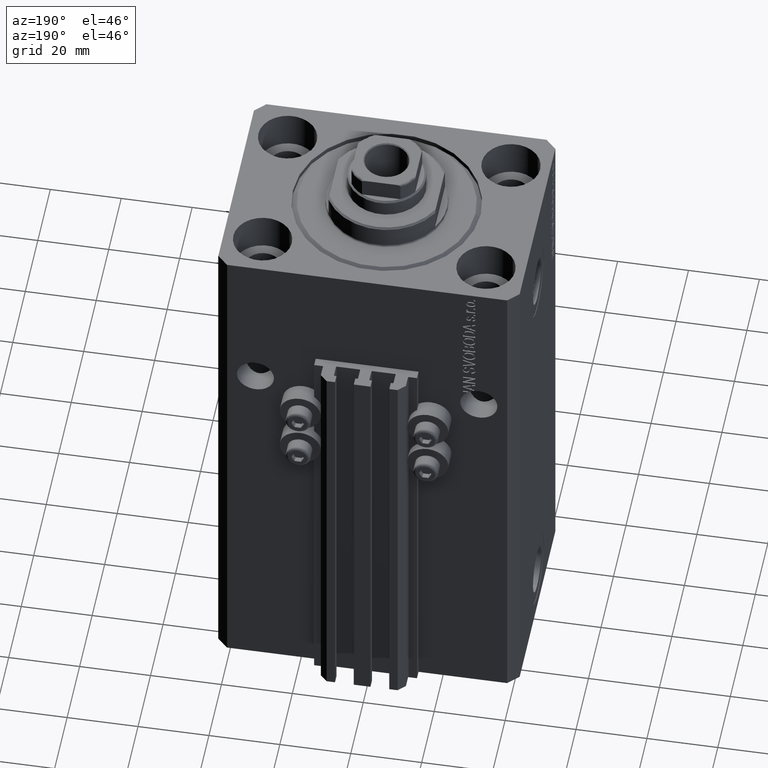
[diagram: clean part render]
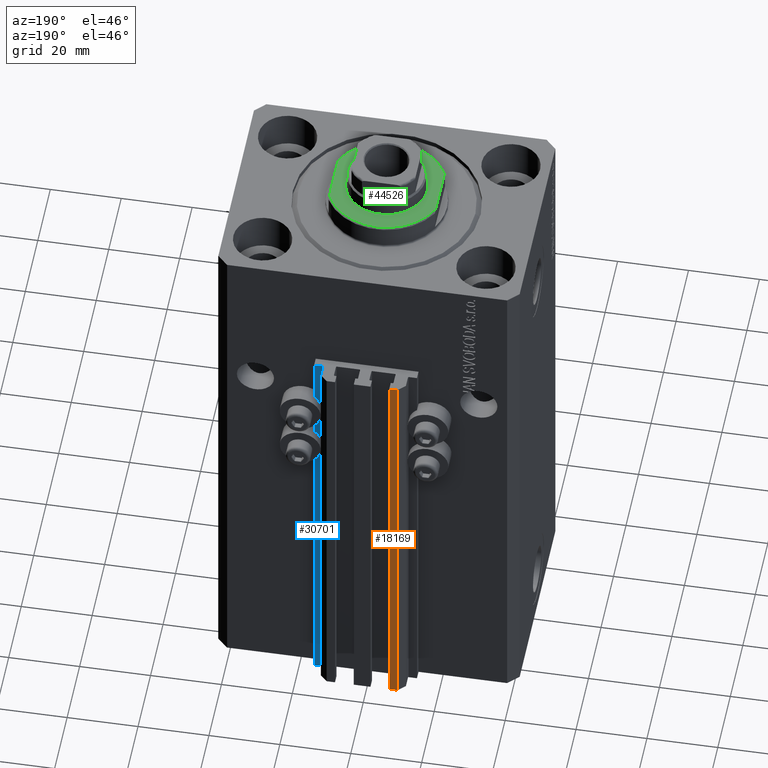
[diagram: same view with three faces highlighted in distinct colors, each labeled with its STEP entity id]
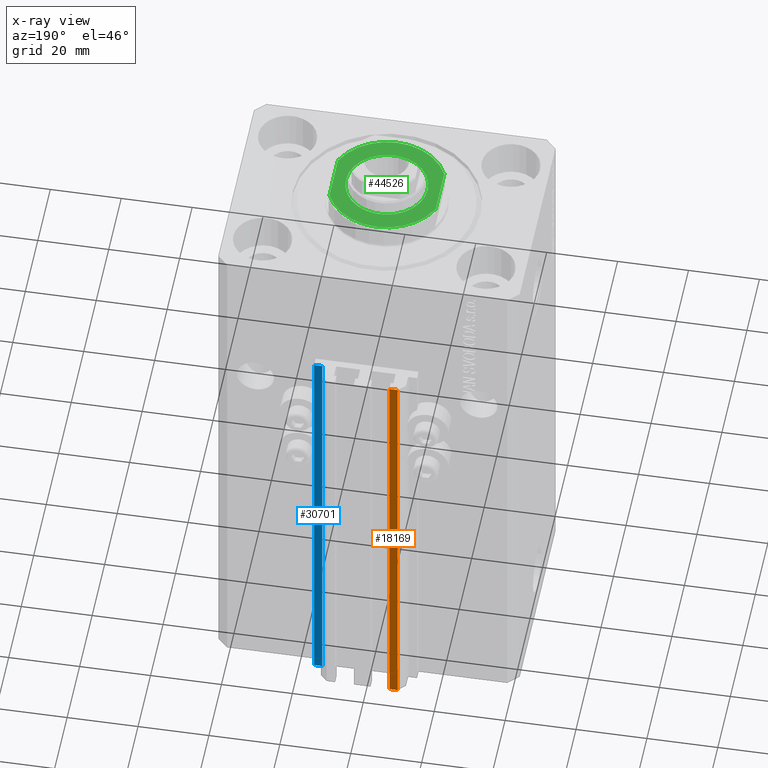
[diagram: x-ray of the same camera — body ghosted, the three highlighted faces saturated]
A machine part, auxiliary view with three faces highlighted in distinct colors.
The next image is the same camera in x-ray (body ghosted, the three faces saturated) — at least one of them is partly hidden behind the body in this view.
Their STEP definitions:

[orange] entity #18169 — the highlighted planar face has unit normal (0, 1, 0).
#33 = VERTEX_POINT ( 'NONE', #33818 ) ;
#151 = LINE ( 'NONE', #10614, #7943 ) ;
#254 = CARTESIAN_POINT ( 'NONE',  ( -7.650000000000002132, 39.49999999999999289, -33.00000000000000000 ) ) ;
#1602 = ORIENTED_EDGE ( 'NONE', *, *, #4387, .F. ) ;
#2387 = LINE ( 'NONE', #6037, #20564 ) ;
#2870 = EDGE_CURVE ( 'NONE', #31210, #33, #18739, .T. ) ;
#4162 = VECTOR ( 'NONE', #4653, 1000.000000000000000 ) ;
#4387 = EDGE_CURVE ( 'NONE', #46234, #31210, #151, .T. ) ;
#4653 = DIRECTION ( 'NONE',  ( 0.000000000000000000, 0.000000000000000000, 1.000000000000000000 ) ) ;
#4891 = LINE ( 'NONE', #8279, #4162 ) ;
#6037 = CARTESIAN_POINT ( 'NONE',  ( -7.650000000000002132, 39.49999999999999289, -153.0000000000000000 ) ) ;
#7943 = VECTOR ( 'NONE', #18391, 1000.000000000000000 ) ;
#8279 = CARTESIAN_POINT ( 'NONE',  ( -10.00000000000000000, 39.49999999999999289, -153.0000000000000000 ) ) ;
#9900 = VERTEX_POINT ( 'NONE', #33509 ) ;
#10359 = EDGE_LOOP ( 'NONE', ( #38446, #1602, #23126, #18941 ) ) ;
#10614 = CARTESIAN_POINT ( 'NONE',  ( -7.650000000000002132, 39.49999999999999289, -153.0000000000000000 ) ) ;
#10620 = DIRECTION ( 'NONE',  ( 0.000000000000000000, 1.000000000000000000, -0.000000000000000000 ) ) ;
#15102 = DIRECTION ( 'NONE',  ( -1.000000000000000000, 0.000000000000000000, 0.000000000000000000 ) ) ;
#17229 = DIRECTION ( 'NONE',  ( -1.000000000000000000, 0.000000000000000000, 0.000000000000000000 ) ) ;
#18159 = DIRECTION ( 'NONE',  ( 0.000000000000000000, 0.000000000000000000, 1.000000000000000000 ) ) ;
#18169 = ADVANCED_FACE ( 'NONE', ( #28400 ), #29094, .T. ) ;
#18391 = DIRECTION ( 'NONE',  ( 0.000000000000000000, 0.000000000000000000, 1.000000000000000000 ) ) ;
#18739 = LINE ( 'NONE', #254, #32776 ) ;
#18941 = ORIENTED_EDGE ( 'NONE', *, *, #28863, .T. ) ;
#20564 = VECTOR ( 'NONE', #17229, 1000.000000000000000 ) ;
#23126 = ORIENTED_EDGE ( 'NONE', *, *, #30126, .T. ) ;
#24344 = CARTESIAN_POINT ( 'NONE',  ( -7.650000000000002132, 39.49999999999999289, -33.00000000000000000 ) ) ;
#28400 = FACE_OUTER_BOUND ( 'NONE', #10359, .T. ) ;
#28863 = EDGE_CURVE ( 'NONE', #9900, #33, #4891, .T. ) ;
#29094 = PLANE ( 'NONE',  #40935 ) ;
#30126 = EDGE_CURVE ( 'NONE', #46234, #9900, #2387, .T. ) ;
#31210 = VERTEX_POINT ( 'NONE', #24344 ) ;
#32277 = CARTESIAN_POINT ( 'NONE',  ( -7.650000000000002132, 39.49999999999999289, -153.0000000000000000 ) ) ;
#32776 = VECTOR ( 'NONE', #15102, 1000.000000000000000 ) ;
#33509 = CARTESIAN_POINT ( 'NONE',  ( -10.00000000000000000, 39.49999999999999289, -153.0000000000000000 ) ) ;
#33818 = CARTESIAN_POINT ( 'NONE',  ( -10.00000000000000000, 39.49999999999999289, -33.00000000000000000 ) ) ;
#38446 = ORIENTED_EDGE ( 'NONE', *, *, #2870, .F. ) ;
#40935 = AXIS2_PLACEMENT_3D ( 'NONE', #47848, #10620, #18159 ) ;
#46234 = VERTEX_POINT ( 'NONE', #32277 ) ;
#47848 = CARTESIAN_POINT ( 'NONE',  ( -7.650000000000002132, 39.49999999999999289, -153.0000000000000000 ) ) ;

[blue] entity #30701 — the highlighted planar face has unit normal (0, 1, 0).
#665 = EDGE_CURVE ( 'NONE', #10218, #2099, #17329, .T. ) ;
#2099 = VERTEX_POINT ( 'NONE', #2158 ) ;
#2158 = CARTESIAN_POINT ( 'NONE',  ( 12.20000000000000107, 34.00000000000001421, -33.00000000000000000 ) ) ;
#2941 = CARTESIAN_POINT ( 'NONE',  ( 14.49999999999999645, 34.00000000000001421, -153.0000000000000000 ) ) ;
#3834 = EDGE_CURVE ( 'NONE', #23429, #10218, #15900, .T. ) ;
#4930 = ORIENTED_EDGE ( 'NONE', *, *, #5930, .T. ) ;
#5930 = EDGE_CURVE ( 'NONE', #20258, #2099, #44985, .T. ) ;
#10218 = VERTEX_POINT ( 'NONE', #11071 ) ;
#11071 = CARTESIAN_POINT ( 'NONE',  ( 14.49999999999999645, 34.00000000000001421, -33.00000000000000000 ) ) ;
#13751 = DIRECTION ( 'NONE',  ( -1.000000000000000000, 0.000000000000000000, 0.000000000000000000 ) ) ;
#15658 = CARTESIAN_POINT ( 'NONE',  ( 14.49999999999999645, 34.00000000000001421, -153.0000000000000000 ) ) ;
#15900 = LINE ( 'NONE', #15658, #38241 ) ;
#17329 = LINE ( 'NONE', #31696, #18678 ) ;
#17582 = CARTESIAN_POINT ( 'NONE',  ( 12.20000000000000107, 34.00000000000001421, -153.0000000000000000 ) ) ;
#17638 = PLANE ( 'NONE',  #25204 ) ;
#18678 = VECTOR ( 'NONE', #20744, 1000.000000000000000 ) ;
#20258 = VERTEX_POINT ( 'NONE', #17582 ) ;
#20699 = ORIENTED_EDGE ( 'NONE', *, *, #665, .F. ) ;
#20744 = DIRECTION ( 'NONE',  ( -1.000000000000000000, 0.000000000000000000, 0.000000000000000000 ) ) ;
#21055 = DIRECTION ( 'NONE',  ( 0.000000000000000000, 1.000000000000000000, -0.000000000000000000 ) ) ;
#23429 = VERTEX_POINT ( 'NONE', #2941 ) ;
#24104 = DIRECTION ( 'NONE',  ( 0.000000000000000000, 0.000000000000000000, 1.000000000000000000 ) ) ;
#24938 = DIRECTION ( 'NONE',  ( 0.000000000000000000, 0.000000000000000000, 1.000000000000000000 ) ) ;
#25170 = FACE_OUTER_BOUND ( 'NONE', #45636, .T. ) ;
#25204 = AXIS2_PLACEMENT_3D ( 'NONE', #40017, #21055, #24938 ) ;
#26482 = CARTESIAN_POINT ( 'NONE',  ( 12.20000000000000107, 34.00000000000001421, -153.0000000000000000 ) ) ;
#29788 = ORIENTED_EDGE ( 'NONE', *, *, #30744, .T. ) ;
#30701 = ADVANCED_FACE ( 'NONE', ( #25170 ), #17638, .T. ) ;
#30744 = EDGE_CURVE ( 'NONE', #23429, #20258, #47318, .T. ) ;
#31696 = CARTESIAN_POINT ( 'NONE',  ( 14.49999999999999645, 34.00000000000001421, -33.00000000000000000 ) ) ;
#34545 = VECTOR ( 'NONE', #13751, 1000.000000000000000 ) ;
#35939 = VECTOR ( 'NONE', #45464, 1000.000000000000000 ) ;
#38241 = VECTOR ( 'NONE', #24104, 1000.000000000000000 ) ;
#38319 = ORIENTED_EDGE ( 'NONE', *, *, #3834, .F. ) ;
#39548 = CARTESIAN_POINT ( 'NONE',  ( 14.49999999999999645, 34.00000000000001421, -153.0000000000000000 ) ) ;
#40017 = CARTESIAN_POINT ( 'NONE',  ( 14.49999999999999645, 34.00000000000001421, -153.0000000000000000 ) ) ;
#44985 = LINE ( 'NONE', #26482, #35939 ) ;
#45464 = DIRECTION ( 'NONE',  ( 0.000000000000000000, 0.000000000000000000, 1.000000000000000000 ) ) ;
#45636 = EDGE_LOOP ( 'NONE', ( #20699, #38319, #29788, #4930 ) ) ;
#47318 = LINE ( 'NONE', #39548, #34545 ) ;

[green] entity #44526 — the highlighted planar face has unit normal (0, 0, 1).
#188 = CARTESIAN_POINT ( 'NONE',  ( 15.00000000000000000, -42.42640687119285303, -7.000000000000000000 ) ) ;
#828 = CARTESIAN_POINT ( 'NONE',  ( -15.00000000000000000, -6.873863542433783280, -7.000000000000000000 ) ) ;
#4892 = EDGE_LOOP ( 'NONE', ( #42489, #13804, #41691, #35977 ) ) ;
#5539 = CARTESIAN_POINT ( 'NONE',  ( 14.99999999999999645, 6.873863542433781504, -7.000000000000000000 ) ) ;
#5712 = ORIENTED_EDGE ( 'NONE', *, *, #25692, .T. ) ;
#6383 = VERTEX_POINT ( 'NONE', #18102 ) ;
#6683 = AXIS2_PLACEMENT_3D ( 'NONE', #10887, #25730, #40577 ) ;
#9027 = CIRCLE ( 'NONE', #6683, 11.49999999999999645 ) ;
#9851 = AXIS2_PLACEMENT_3D ( 'NONE', #28042, #31698, #39477 ) ;
#10173 = CARTESIAN_POINT ( 'NONE',  ( -14.99999999999999645, 6.873863542433781504, -7.000000000000000000 ) ) ;
#10887 = CARTESIAN_POINT ( 'NONE',  ( 0.000000000000000000, 0.000000000000000000, -7.000000000000000000 ) ) ;
#12122 = DIRECTION ( 'NONE',  ( -1.000000000000000000, 0.000000000000000000, 0.000000000000000000 ) ) ;
#12314 = AXIS2_PLACEMENT_3D ( 'NONE', #21917, #32856, #25800 ) ;
#12682 = DIRECTION ( 'NONE',  ( -0.000000000000000000, -1.000000000000000000, -0.000000000000000000 ) ) ;
#13489 = VERTEX_POINT ( 'NONE', #37516 ) ;
#13768 = PLANE ( 'NONE',  #22451 ) ;
#13776 = CIRCLE ( 'NONE', #15311, 16.50000000000000711 ) ;
#13804 = ORIENTED_EDGE ( 'NONE', *, *, #16464, .T. ) ;
#15311 = AXIS2_PLACEMENT_3D ( 'NONE', #26480, #16504, #12122 ) ;
#15865 = CARTESIAN_POINT ( 'NONE',  ( 11.49999999999999645, 1.408343819019455781E-15, -7.000000000000000000 ) ) ;
#16464 = EDGE_CURVE ( 'NONE', #46059, #6383, #19163, .T. ) ;
#16504 = DIRECTION ( 'NONE',  ( 0.000000000000000000, 0.000000000000000000, -1.000000000000000000 ) ) ;
#16819 = LINE ( 'NONE', #38962, #31677 ) ;
#17893 = FACE_BOUND ( 'NONE', #23194, .T. ) ;
#18102 = CARTESIAN_POINT ( 'NONE',  ( 14.99999999999999645, -6.873863542433781504, -7.000000000000000000 ) ) ;
#18607 = VERTEX_POINT ( 'NONE', #828 ) ;
#19163 = LINE ( 'NONE', #188, #32364 ) ;
#20537 = EDGE_CURVE ( 'NONE', #44175, #18607, #16819, .T. ) ;
#21917 = CARTESIAN_POINT ( 'NONE',  ( 0.000000000000000000, 0.000000000000000000, -7.000000000000000000 ) ) ;
#22451 = AXIS2_PLACEMENT_3D ( 'NONE', #31789, #32260, #40039 ) ;
#23194 = EDGE_LOOP ( 'NONE', ( #5712, #24826 ) ) ;
#24826 = ORIENTED_EDGE ( 'NONE', *, *, #37493, .T. ) ;
#25692 = EDGE_CURVE ( 'NONE', #13489, #36809, #43402, .T. ) ;
#25730 = DIRECTION ( 'NONE',  ( -0.000000000000000000, -0.000000000000000000, 1.000000000000000000 ) ) ;
#25800 = DIRECTION ( 'NONE',  ( -1.000000000000000000, 0.000000000000000000, 0.000000000000000000 ) ) ;
#26480 = CARTESIAN_POINT ( 'NONE',  ( 0.000000000000000000, 0.000000000000000000, -7.000000000000000000 ) ) ;
#28042 = CARTESIAN_POINT ( 'NONE',  ( 0.000000000000000000, 0.000000000000000000, -7.000000000000000000 ) ) ;
#31677 = VECTOR ( 'NONE', #12682, 1000.000000000000000 ) ;
#31698 = DIRECTION ( 'NONE',  ( 0.000000000000000000, 0.000000000000000000, -1.000000000000000000 ) ) ;
#31789 = CARTESIAN_POINT ( 'NONE',  ( 0.000000000000000000, 0.000000000000000000, -7.000000000000000000 ) ) ;
#32260 = DIRECTION ( 'NONE',  ( 0.000000000000000000, 0.000000000000000000, -1.000000000000000000 ) ) ;
#32364 = VECTOR ( 'NONE', #44713, 1000.000000000000000 ) ;
#32856 = DIRECTION ( 'NONE',  ( -0.000000000000000000, -0.000000000000000000, 1.000000000000000000 ) ) ;
#35977 = ORIENTED_EDGE ( 'NONE', *, *, #20537, .F. ) ;
#36378 = FACE_OUTER_BOUND ( 'NONE', #4892, .T. ) ;
#36809 = VERTEX_POINT ( 'NONE', #15865 ) ;
#37493 = EDGE_CURVE ( 'NONE', #36809, #13489, #9027, .T. ) ;
#37516 = CARTESIAN_POINT ( 'NONE',  ( -11.49999999999999645, 0.000000000000000000, -7.000000000000000000 ) ) ;
#38962 = CARTESIAN_POINT ( 'NONE',  ( -15.00000000000000000, -42.42640687119285303, -7.000000000000000000 ) ) ;
#39210 = EDGE_CURVE ( 'NONE', #6383, #18607, #45598, .T. ) ;
#39477 = DIRECTION ( 'NONE',  ( -1.000000000000000000, 0.000000000000000000, 0.000000000000000000 ) ) ;
#39671 = EDGE_CURVE ( 'NONE', #44175, #46059, #13776, .T. ) ;
#40039 = DIRECTION ( 'NONE',  ( -1.000000000000000000, 0.000000000000000000, -0.000000000000000000 ) ) ;
#40577 = DIRECTION ( 'NONE',  ( -1.000000000000000000, 0.000000000000000000, 0.000000000000000000 ) ) ;
#41691 = ORIENTED_EDGE ( 'NONE', *, *, #39210, .T. ) ;
#42489 = ORIENTED_EDGE ( 'NONE', *, *, #39671, .T. ) ;
#43402 = CIRCLE ( 'NONE', #12314, 11.49999999999999645 ) ;
#44175 = VERTEX_POINT ( 'NONE', #10173 ) ;
#44526 = ADVANCED_FACE ( 'NONE', ( #17893, #36378 ), #13768, .T. ) ;
#44713 = DIRECTION ( 'NONE',  ( 0.000000000000000000, -1.000000000000000000, -0.000000000000000000 ) ) ;
#45598 = CIRCLE ( 'NONE', #9851, 16.50000000000000711 ) ;
#46059 = VERTEX_POINT ( 'NONE', #5539 ) ;